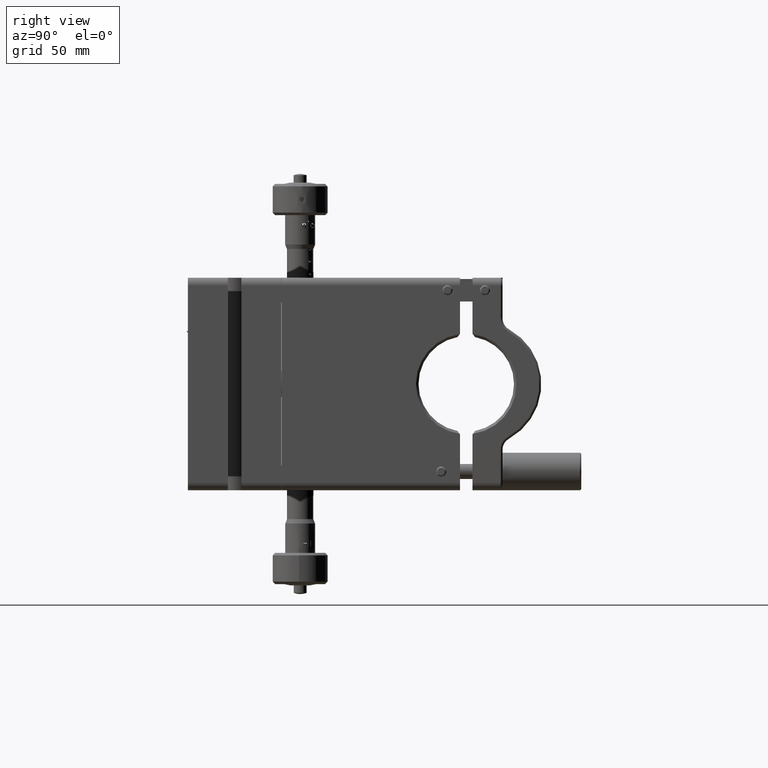
[diagram: clean part render]
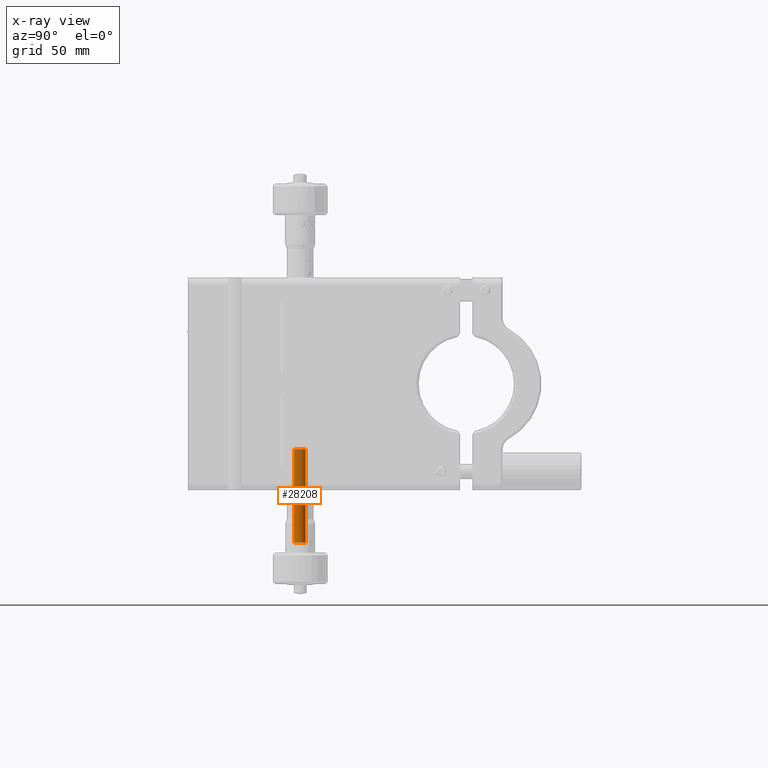
[diagram: x-ray — body ghosted, one internal face saturated and labeled with its STEP entity id]
A machine part, right view, then the same camera in x-ray: the body is ghosted and one INTERNAL B-rep face — a face not visible from any outside direction — is saturated and labeled: STEP entity #28208.
In plain terms, the highlighted cylindrical surface (edge-blend (fillet) strip) has radius 2.5 mm, axis along (-0, 0, -1).
Its self-contained STEP definition (entity closure, byte-faithful):
#2415 = CARTESIAN_POINT ( 'NONE',  ( -60.00000000000005684, 36.89999999999989200, -96.54102306920766807 ) ) ;
#2941 = EDGE_CURVE ( 'NONE', #5020, #29253, #17924, .T. ) ;
#4349 = CIRCLE ( 'NONE', #47465, 2.500000000000000000 ) ;
#5020 = VERTEX_POINT ( 'NONE', #42975 ) ;
#8333 = EDGE_CURVE ( 'NONE', #5020, #30538, #29525, .T. ) ;
#10453 = DIRECTION ( 'NONE',  ( -1.884411190088989051E-16, 1.595864108617562641E-16, -1.000000000000000000 ) ) ;
#13225 = CARTESIAN_POINT ( 'NONE',  ( -61.41070723752619642, 34.83604624809764516, -63.50000000000002842 ) ) ;
#16016 = DIRECTION ( 'NONE',  ( -1.884411190088989051E-16, 1.595864108617562641E-16, -1.000000000000000000 ) ) ;
#16621 = VERTEX_POINT ( 'NONE', #13225 ) ;
#17671 = ORIENTED_EDGE ( 'NONE', *, *, #56307, .T. ) ;
#17924 = LINE ( 'NONE', #44894, #39686 ) ;
#20761 = EDGE_LOOP ( 'NONE', ( #26088, #25369, #17671, #44020 ) ) ;
#22909 = CARTESIAN_POINT ( 'NONE',  ( -58.58929276247389595, 38.96395375190211752, -63.50000000000002842 ) ) ;
#24240 = CYLINDRICAL_SURFACE ( 'NONE', #56612, 2.500000000000000000 ) ;
#25369 = ORIENTED_EDGE ( 'NONE', *, *, #8333, .T. ) ;
#26088 = ORIENTED_EDGE ( 'NONE', *, *, #2941, .F. ) ;
#28208 = ADVANCED_FACE ( 'NONE', ( #46058 ), #24240, .T. ) ;
#28323 = EDGE_CURVE ( 'NONE', #16621, #29253, #4349, .T. ) ;
#28643 = LINE ( 'NONE', #46428, #48333 ) ;
#29118 = DIRECTION ( 'NONE',  ( -1.884411190088989051E-16, 1.595864108617562641E-16, -1.000000000000000000 ) ) ;
#29253 = VERTEX_POINT ( 'NONE', #22909 ) ;
#29525 = CIRCLE ( 'NONE', #38710, 2.500000000000009770 ) ;
#30538 = VERTEX_POINT ( 'NONE', #37506 ) ;
#30806 = DIRECTION ( 'NONE',  ( 0.5642828950104594732, 0.8255815007608969802, 0.000000000000000000 ) ) ;
#31676 = CARTESIAN_POINT ( 'NONE',  ( -60.00000000000004974, 36.89999999999987068, -26.10000000000004761 ) ) ;
#32545 = DIRECTION ( 'NONE',  ( -0.5642828950104600283, -0.8255815007608964251, 0.000000000000000000 ) ) ;
#34552 = CARTESIAN_POINT ( 'NONE',  ( -60.00000000000007105, 36.89999999999989910, -63.50000000000002842 ) ) ;
#37506 = CARTESIAN_POINT ( 'NONE',  ( -61.41070723752620353, 34.83604624809762385, -26.10000000000004761 ) ) ;
#38710 = AXIS2_PLACEMENT_3D ( 'NONE', #31676, #10453, #32545 ) ;
#39686 = VECTOR ( 'NONE', #52673, 1000.000000000000000 ) ;
#42975 = CARTESIAN_POINT ( 'NONE',  ( -58.58929276247390305, 38.96395375190211752, -26.10000000000004761 ) ) ;
#44020 = ORIENTED_EDGE ( 'NONE', *, *, #28323, .T. ) ;
#44894 = CARTESIAN_POINT ( 'NONE',  ( -58.58929276247390305, 38.96395375190213883, -96.54102306920766807 ) ) ;
#46058 = FACE_OUTER_BOUND ( 'NONE', #20761, .T. ) ;
#46428 = CARTESIAN_POINT ( 'NONE',  ( -61.41070723752620353, 34.83604624809765227, -96.54102306920766807 ) ) ;
#46633 = DIRECTION ( 'NONE',  ( -0.5642828950104594732, -0.8255815007608969802, 0.000000000000000000 ) ) ;
#47465 = AXIS2_PLACEMENT_3D ( 'NONE', #34552, #56086, #30806 ) ;
#48333 = VECTOR ( 'NONE', #16016, 1000.000000000000000 ) ;
#52673 = DIRECTION ( 'NONE',  ( -1.884411190088989051E-16, 1.595864108617562641E-16, -1.000000000000000000 ) ) ;
#56086 = DIRECTION ( 'NONE',  ( 1.884411190088989051E-16, -1.595864108617562641E-16, 1.000000000000000000 ) ) ;
#56307 = EDGE_CURVE ( 'NONE', #30538, #16621, #28643, .T. ) ;
#56612 = AXIS2_PLACEMENT_3D ( 'NONE', #2415, #29118, #46633 ) ;